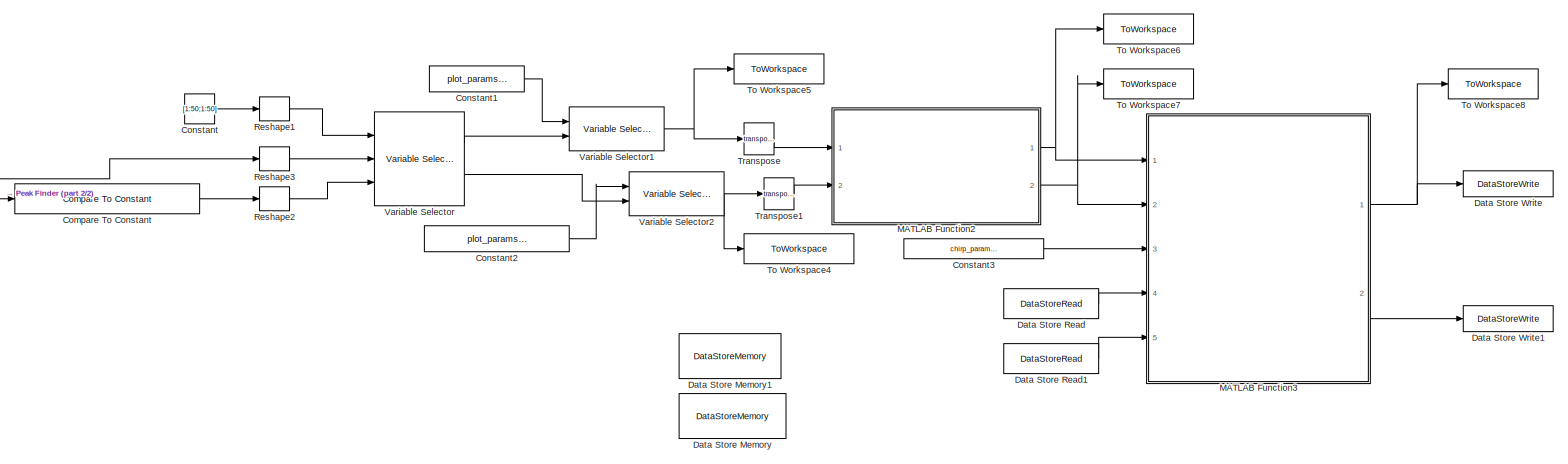
[diagram: root canvas - part 1/2, right side, full height]
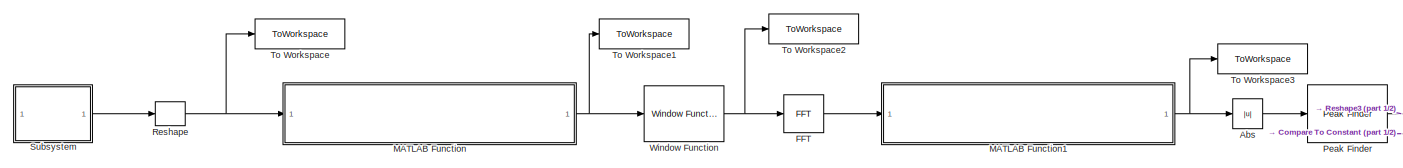
[diagram: root canvas - part 2/2, middle left region]
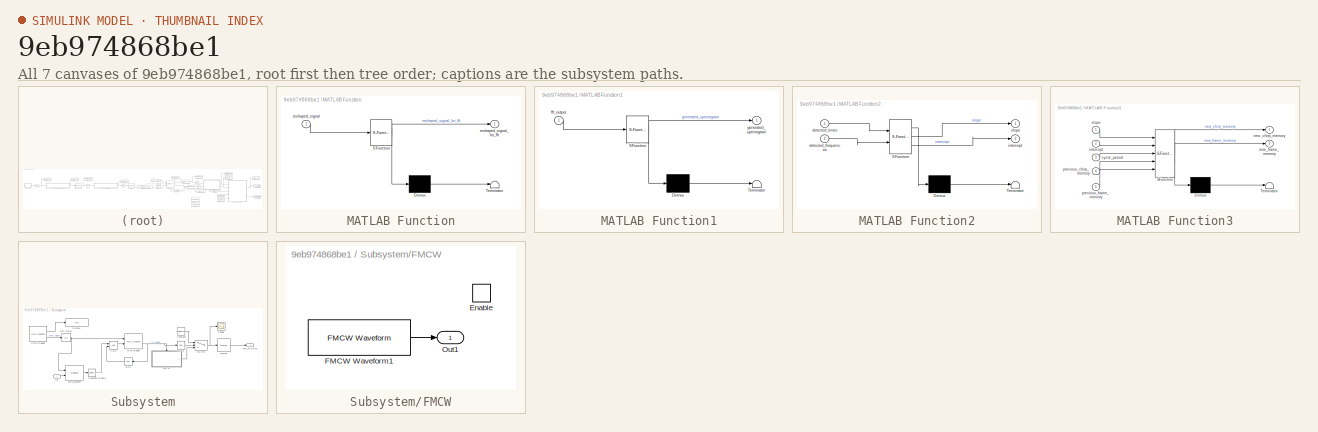
[diagram: thumbnail index - all 7 canvases of the model, root first then tree order]
MODEL slx_9eb974868be1
KIND model
CONFIG AbsTol = auto
CONFIG EnableMultiTasking = off
CONFIG FixedStep = auto
CONFIG MaxStep = auto
CONFIG MinStep = auto
CONFIG RelTol = 1e-3
CONFIG SampleTimeConstraint = Unconstrained
CONFIG SolverName = VariableStepAuto
CONFIG StartTime = 0.0
CONFIG StopTime = 5 * chirp_params.cycle_period_us * 1e-6
BLOCK [Abs] Abs
  SaturateOnIntegerOverflow = off
BLOCK [Reference] Compare To Constant  REF=simulink/Logic and Bit
Operations/Compare
To Constant
  Ports = [1, 1]
  SourceBlock = simulink/Logic and Bit\nOperations/Compare\nTo Constant
  SourceProductBaseCode = SL
  SourceType = Compare To Constant
BLOCK [Constant] Constant
  Value = [1:50;1:50]
  VectorParams1D = off
BLOCK [Constant] Constant1
  Value = plot_params.times
BLOCK [Constant] Constant2
  Value = plot_params.frequencies
BLOCK [Constant] Constant3
  Value = chirp_params.cycle_period_us
BLOCK [DataStoreMemory] Data Store Memory
  DataStoreName = chirp_memory
  InitialValue = zeros(2,6)
  ReadBeforeWriteMsg = warning
  ShowAdditionalParam = off
  WriteAfterReadMsg = warning
  WriteAfterWriteMsg = warning
BLOCK [DataStoreMemory] Data Store Memory1
  DataStoreName = frame_memory
  InitialValue = zeros(1,3)
  ReadBeforeWriteMsg = warning
  ShowAdditionalParam = off
  VectorParams1D = off
  WriteAfterReadMsg = warning
  WriteAfterWriteMsg = warning
BLOCK [DataStoreRead] Data Store Read
  DataStoreName = chirp_memory
  IndexOptions = Index vector (dialog)
  Indices = 1
  OutputSizes = 1
  Ports = [0, 1]
BLOCK [DataStoreRead] Data Store Read1
  DataStoreName = frame_memory
  IndexOptions = Index vector (dialog)
  Indices = 1
  OutputSizes = 1
  Ports = [0, 1]
BLOCK [DataStoreWrite] Data Store Write
  DataStoreName = chirp_memory
  IndexOptions = Index vector (dialog)
  Indices = 1
  OutputSizes = 1
  Ports = [1]
BLOCK [DataStoreWrite] Data Store Write1
  DataStoreName = frame_memory
  IndexOptions = Index vector (dialog)
  Indices = 1
  OutputSizes = 1
  Ports = [1]
BLOCK [Reference] FFT  REF=dspxfrm3/FFT
  Ports = [1, 1]
  SourceBlock = dspxfrm3/FFT
  SourceProductBaseCode = DS
  SourceType = FFT
BLOCK [SubSystem] MATLAB Function
  ErrorFcn = Stateflow.Translate.translate
  PermitHierarchicalResolution = ExplicitOnly
  Ports = [1, 1]
  RequestExecContextInheritance = off
  SFBlockType = MATLAB Function
  TreatAsAtomicUnit = on
BLOCK [Demux] MATLAB Function/ Demux 
  Outputs = 1
  Ports = [1, 1]
BLOCK [S-Function] MATLAB Function/ SFunction 
  EnableBusSupport = on
  FunctionName = sf_sfun
  Parameters = fft_size
  PortCounts = [1 2]
  Ports = [1, 2]
  SFcnIsStateOwnerBlock = off
  SFunctionDeploymentMode = off
  Tag = Stateflow S-Function 2
BLOCK [Terminator] MATLAB Function/ Terminator 
BLOCK [Inport] MATLAB Function/reshaped_signal
BLOCK [Outport] MATLAB Function/reshaped_signal_for_fft
BLOCK [SubSystem] MATLAB Function1
  ErrorFcn = Stateflow.Translate.translate
  PermitHierarchicalResolution = ExplicitOnly
  Ports = [1, 1]
  RequestExecContextInheritance = off
  SFBlockType = MATLAB Function
  TreatAsAtomicUnit = on
BLOCK [Demux] MATLAB Function1/ Demux 
  Outputs = 1
  Ports = [1, 1]
BLOCK [S-Function] MATLAB Function1/ SFunction 
  EnableBusSupport = on
  FunctionName = sf_sfun
  Parameters = half_fft_size
  PortCounts = [1 2]
  Ports = [1, 2]
  SFcnIsStateOwnerBlock = off
  SFunctionDeploymentMode = off
  Tag = Stateflow S-Function 1
BLOCK [Terminator] MATLAB Function1/ Terminator 
BLOCK [Inport] MATLAB Function1/fft_output
BLOCK [Outport] MATLAB Function1/generated_spectogram
BLOCK [SubSystem] MATLAB Function2
  ErrorFcn = Stateflow.Translate.translate
  PermitHierarchicalResolution = ExplicitOnly
  Ports = [2, 2]
  RequestExecContextInheritance = off
  SFBlockType = MATLAB Function
  TreatAsAtomicUnit = on
BLOCK [Demux] MATLAB Function2/ Demux 
  Outputs = 1
  Ports = [1, 1]
BLOCK [S-Function] MATLAB Function2/ SFunction 
  EnableBusSupport = on
  FunctionName = sf_sfun
  PortCounts = [2 3]
  Ports = [2, 3]
  SFcnIsStateOwnerBlock = off
  SFunctionDeploymentMode = off
  Tag = Stateflow S-Function 3
BLOCK [Terminator] MATLAB Function2/ Terminator 
BLOCK [Inport] MATLAB Function2/detected_frequencies
  Port = 2
BLOCK [Inport] MATLAB Function2/detected_times
BLOCK [Outport] MATLAB Function2/intercept
  Port = 2
BLOCK [Outport] MATLAB Function2/slope
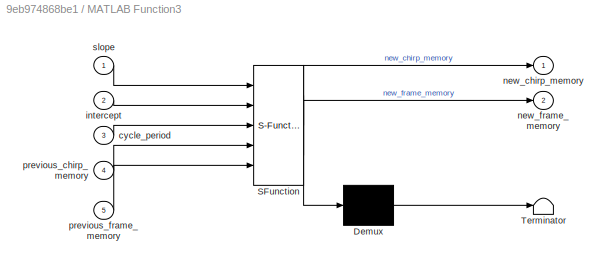
BLOCK [SubSystem] MATLAB Function3
  ErrorFcn = Stateflow.Translate.translate
  PermitHierarchicalResolution = ExplicitOnly
  Ports = [5, 2]
  RequestExecContextInheritance = off
  SFBlockType = MATLAB Function
  TreatAsAtomicUnit = on
BLOCK [Demux] MATLAB Function3/ Demux 
  Outputs = 1
  Ports = [1, 1]
BLOCK [S-Function] MATLAB Function3/ SFunction 
  EnableBusSupport = on
  FunctionName = sf_sfun
  PortCounts = [5 3]
  Ports = [5, 3]
  SFcnIsStateOwnerBlock = off
  SFunctionDeploymentMode = off
  Tag = Stateflow S-Function 4
BLOCK [Terminator] MATLAB Function3/ Terminator 
BLOCK [Inport] MATLAB Function3/cycle_period
  Port = 3
BLOCK [Inport] MATLAB Function3/intercept
  Port = 2
BLOCK [Outport] MATLAB Function3/new_chirp_memory
BLOCK [Outport] MATLAB Function3/new_frame_memory
  Port = 2
BLOCK [Inport] MATLAB Function3/previous_chirp_memory
  Port = 4
BLOCK [Inport] MATLAB Function3/previous_frame_memory
  Port = 5
BLOCK [Inport] MATLAB Function3/slope
BLOCK [Reference] Peak Finder  REF=dspsigops/Peak Finder
  Ports = [1, 3]
  SourceBlock = dspsigops/Peak Finder
  SourceProductBaseCode = DS
  SourceType = Peak Finder
BLOCK [Reshape] Reshape
  OutputDimensionality = Customize
  OutputDimensions = [50,50]
  Ports = [1, 1]
BLOCK [Reshape] Reshape1
  Ports = [1, 1]
BLOCK [Reshape] Reshape2
  Ports = [1, 1]
BLOCK [Reshape] Reshape3
  Ports = [1, 1]
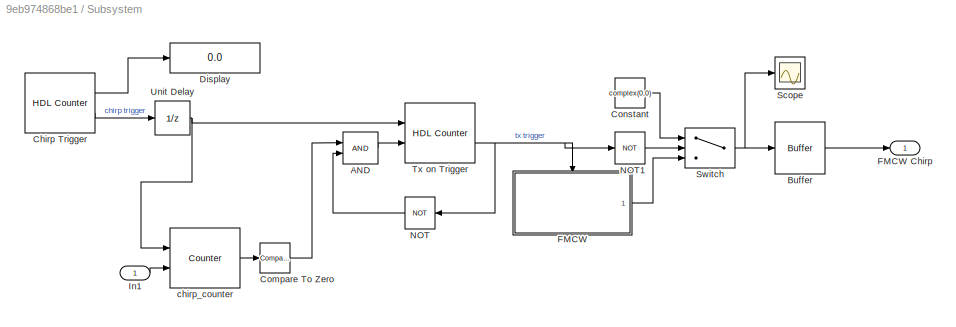
BLOCK [SubSystem] Subsystem
  Ports = [1, 1]
  RequestExecContextInheritance = off
BLOCK [Logic] Subsystem/AND
  AllPortsSameDT = off
  IconShape = distinctive
  OutDataTypeStr = boolean
  Ports = [2, 1]
BLOCK [Buffer] Subsystem/Buffer
  N = int16(chirp_params.cycle_period_us * 1e-6 * waveform_params.sample_rate_Hz)
  OutputFrames = off
BLOCK [Reference] Subsystem/Chirp Trigger  REF=hdlsllib/Sources/HDL Counter
  Ports = [1, 2]
  SourceBlock = hdlsllib/Sources/HDL Counter
  SourceProductBaseCode = SL
  SourceType = HDL Counter
BLOCK [Reference] Subsystem/Compare To Zero  REF=hdlsllib/Logic and Bit
Operations/Compare
To Zero
  Ports = [1, 1]
  SourceBlock = hdlsllib/Logic and Bit\nOperations/Compare\nTo Zero
  SourceProductBaseCode = SL
  SourceType = Compare To Zero
BLOCK [Constant] Subsystem/Constant
  Value = complex(0,0)
BLOCK [Display] Subsystem/Display
  Commented = on
  Decimation = 1
  Ports = [1]
BLOCK [SubSystem] Subsystem/FMCW
  Ports = [0, 1, 1]
  RequestExecContextInheritance = off
BLOCK [Outport] Subsystem/FMCW Chirp
BLOCK [EnablePort] Subsystem/FMCW/Enable
  Ports = []
  StatesWhenEnabling = reset
BLOCK [Reference] Subsystem/FMCW/FMCW Waveform1  REF=phasedwavlib/FMCW Waveform
  Ports = [0, 1]
  SourceBlock = phasedwavlib/FMCW Waveform
  SourceProductBaseCode = AR
  SourceType = phased.FMCWWaveform
BLOCK [Outport] Subsystem/FMCW/Out1
BLOCK [Inport] Subsystem/In1
BLOCK [Logic] Subsystem/NOT
  AllPortsSameDT = off
  IconShape = distinctive
  Operator = NOT
  OutDataTypeStr = boolean
  Ports = [1, 1]
BLOCK [Logic] Subsystem/NOT1
  AllPortsSameDT = off
  IconShape = distinctive
  Operator = NOT
  OutDataTypeStr = boolean
  Ports = [1, 1]
BLOCK [Scope] Subsystem/Scope
  Commented = on
  Floating = off
  NumInputPorts = 1
  Ports = [1]
  ScopeSpecificationString = Simulink.scopes.TimeScopeBlockCfg('CurrentConfiguration', extmgr.ConfigurationSet(extmgr.Configuration('Core','General UI',true),extmgr.Configuration('Core','Source UI',true),extmgr.Configuration('Sources','WiredSimulink',true),extmgr.Configuration('Visuals','Time Domain',true,'SerializedDisplays',{struct('MinYLimReal','-1.25','MaxYLimReal','1.25','YLabelReal','','MinYLimMag','0.00000','MaxYLimMag...<+1356ch>
BLOCK [Switch] Subsystem/Switch
  Criteria = u2 > Threshold
  InputSameDT = off
  SaturateOnIntegerOverflow = off
BLOCK [Reference] Subsystem/Tx on Trigger  REF=hdlsllib/Sources/HDL Counter
  Ports = [2, 2]
  SourceBlock = hdlsllib/Sources/HDL Counter
  SourceProductBaseCode = SL
  SourceType = HDL Counter
BLOCK [UnitDelay] Subsystem/Unit Delay
  HasFrameUpgradeWarning = on
  SampleTime = -1
BLOCK [Reference] Subsystem/chirp_counter  REF=dspswit3/Counter
  Ports = [2, 1]
  SourceBlock = dspswit3/Counter
  SourceProductBaseCode = DS
  SourceType = Counter
BLOCK [ToWorkspace] To Workspace
  FixptAsFi = on
  MaxDataPoints = 5
  Ports = [1]
  SampleTime = -1
  VariableName = reshaped_signal
BLOCK [ToWorkspace] To Workspace1
  FixptAsFi = on
  MaxDataPoints = 5
  Ports = [1]
  SampleTime = -1
  VariableName = reshaped_signal_for_fft
BLOCK [ToWorkspace] To Workspace2
  FixptAsFi = on
  MaxDataPoints = 5
  Ports = [1]
  SampleTime = -1
  VariableName = windowed_signal
BLOCK [ToWorkspace] To Workspace3
  FixptAsFi = on
  MaxDataPoints = 5
  Ports = [1]
  SampleTime = -1
  VariableName = generated_spectogram
BLOCK [ToWorkspace] To Workspace4
  FixptAsFi = on
  MaxDataPoints = 5
  Ports = [1]
  SampleTime = -1
  VariableName = detected_frequencies
BLOCK [ToWorkspace] To Workspace5
  FixptAsFi = on
  MaxDataPoints = 5
  Ports = [1]
  SampleTime = -1
  VariableName = detected_times
BLOCK [ToWorkspace] To Workspace6
  FixptAsFi = on
  MaxDataPoints = 5
  Ports = [1]
  SampleTime = -1
  VariableName = slope
BLOCK [ToWorkspace] To Workspace7
  FixptAsFi = on
  MaxDataPoints = 5
  Ports = [1]
  SampleTime = -1
  VariableName = intercept
BLOCK [ToWorkspace] To Workspace8
  FixptAsFi = on
  MaxDataPoints = 5
  Ports = [1]
  SampleTime = -1
  VariableName = chirp_memory
BLOCK [Math] Transpose
  Operator = transpose
  Ports = [1, 1]
BLOCK [Math] Transpose1
  Operator = transpose
  Ports = [1, 1]
BLOCK [Reference] Variable Selector  REF=dspindex/Variable
Selector
  Ports = [3, 2]
  SourceBlock = dspindex/Variable\nSelector
  SourceProductBaseCode = DS
  SourceType = Variable Selector
BLOCK [Reference] Variable Selector1  REF=dspindex/Variable
Selector
  Ports = [2, 1]
  SourceBlock = dspindex/Variable\nSelector
  SourceProductBaseCode = DS
  SourceType = Variable Selector
BLOCK [Reference] Variable Selector2  REF=dspindex/Variable
Selector
  Ports = [2, 1]
  SourceBlock = dspindex/Variable\nSelector
  SourceProductBaseCode = DS
  SourceType = Variable Selector
BLOCK [Reference] Window Function  REF=dspsigops/Window
Function
  Ports = [1, 1]
  SourceBlock = dspsigops/Window\nFunction
  SourceProductBaseCode = DS
  SourceType = Window Function
LINE Abs:1 -> Peak Finder:1
LINE Compare To Constant:1 -> Reshape2:1
LINE Constant1:1 -> Variable Selector1:1
LINE Constant2:1 -> Variable Selector2:1
LINE Constant3:1 -> MATLAB Function3:3
LINE Constant:1 -> Reshape1:1
LINE Data Store Read1:1 -> MATLAB Function3:5
LINE Data Store Read:1 -> MATLAB Function3:4
LINE FFT:1 -> MATLAB Function1:1
NET MATLAB Function1:1 -> Abs:1, To Workspace3:1
NET MATLAB Function2:1 -> MATLAB Function3:1, To Workspace6:1
NET MATLAB Function2:2 -> MATLAB Function3:2, To Workspace7:1
NET MATLAB Function3:1 -> Data Store Write:1, To Workspace8:1
LINE MATLAB Function3:2 -> Data Store Write1:1
NET MATLAB Function:1 -> To Workspace1:1, Window Function:1
LINE Peak Finder:2 -> Reshape3:1
LINE Peak Finder:3 -> Compare To Constant:1
LINE Reshape1:1 -> Variable Selector:1
LINE Reshape2:1 -> Variable Selector:3
LINE Reshape3:1 -> Variable Selector:2
NET Reshape:1 -> MATLAB Function:1, To Workspace:1
LINE Subsystem/AND:1 -> Subsystem/Tx on Trigger:2
LINE Subsystem/Buffer:1 -> Subsystem/FMCW Chirp:1
LINE Subsystem/Chirp Trigger:1 -> Subsystem/Display:1
LINE Subsystem/Chirp Trigger:2 -> Subsystem/Unit Delay:1
LINE Subsystem/Compare To Zero:1 -> Subsystem/AND:1
LINE Subsystem/Constant:1 -> Subsystem/Switch:1
LINE Subsystem/FMCW/FMCW Waveform1:1 -> Subsystem/FMCW/Out1:1
LINE Subsystem/FMCW:1 -> Subsystem/Switch:3
LINE Subsystem/In1:1 -> Subsystem/chirp_counter:2
LINE Subsystem/NOT1:1 -> Subsystem/Switch:2
LINE Subsystem/NOT:1 -> Subsystem/AND:2
NET Subsystem/Switch:1 -> Subsystem/Buffer:1, Subsystem/Scope:1
NET Subsystem/Tx on Trigger:2 -> Subsystem/FMCW:enable, Subsystem/NOT1:1, Subsystem/NOT:1
NET Subsystem/Unit Delay:1 -> Subsystem/Tx on Trigger:1, Subsystem/chirp_counter:1
LINE Subsystem/chirp_counter:1 -> Subsystem/Compare To Zero:1
LINE Subsystem:1 -> Reshape:1
LINE Transpose1:1 -> MATLAB Function2:2
LINE Transpose:1 -> MATLAB Function2:1
NET Variable Selector1:1 -> To Workspace5:1, Transpose:1
NET Variable Selector2:1 -> To Workspace4:1, Transpose1:1
LINE Variable Selector:1 -> Variable Selector1:2
LINE Variable Selector:2 -> Variable Selector2:2
NET Window Function:1 -> FFT:1, To Workspace2:1
note: NET lines group one-source signal fan-out (src -> all destinations, sorted); 1:1 wires keep LINE
CHART MATLAB Function1 states=1 transitions=1
  STATE_LABEL 'eML_blk_kernel()'
  STATE_LABEL 'SCRIPT:\nfunction generated_spectogram = remove_negative_frequencies(fft_output, half_fft_size)\n   \ngenerated_spectogram = fft_output(1:half_fft_size,:);\n'
CHART MATLAB Function states=1 transitions=1
  STATE_LABEL 'eML_blk_kernel()'
  STATE_LABEL 'SCRIPT:\nfunction reshaped_signal_for_fft = reshape_for_fft(reshaped_signal, fft_size)\n   \nreshaped_signal_for_fft = reshaped_signal(1:fft_size,:);\n'
CHART MATLAB Function2 states=1 transitions=1
  STATE_LABEL 'eML_blk_kernel()'
  STATE_LABEL "SCRIPT:\nfunction [slope,intercept] = compute_linear_model(detected_times,detected_frequencies)\n    detected_times = detected_times(detected_times > 0);\n    detected_frequencies = detected_frequencies(detected_frequencies > 0);\n    if isempty(detected_frequencies)\n        slope = 0;\n        intercept = 0;\n    else\n        X = [ones(size(detected_times,2),1),detected_times.'];\n        Y = detected_f...<+121ch>"
CHART MATLAB Function3 states=1 transitions=1
  STATE_LABEL 'eML_blk_kernel()'
  STATE_LABEL 'SCRIPT:\nfunction [new_chirp_memory, new_frame_memory] = fcn(slope, intercept, cycle_period, previous_chirp_memory, previous_frame_memory)\n    %protocol for chirp memory - [num chirp/slope samples, sum of slope samples, average slope, num chirp period samples, sum of chirp period samples, average chirp period;\n    %                               previous chirp intercept, number of cycles since last...<+1808ch>'
CHART  states=0 transitions=0
CHART  states=0 transitions=0
CHART  states=0 transitions=0
CHART  states=0 transitions=0
